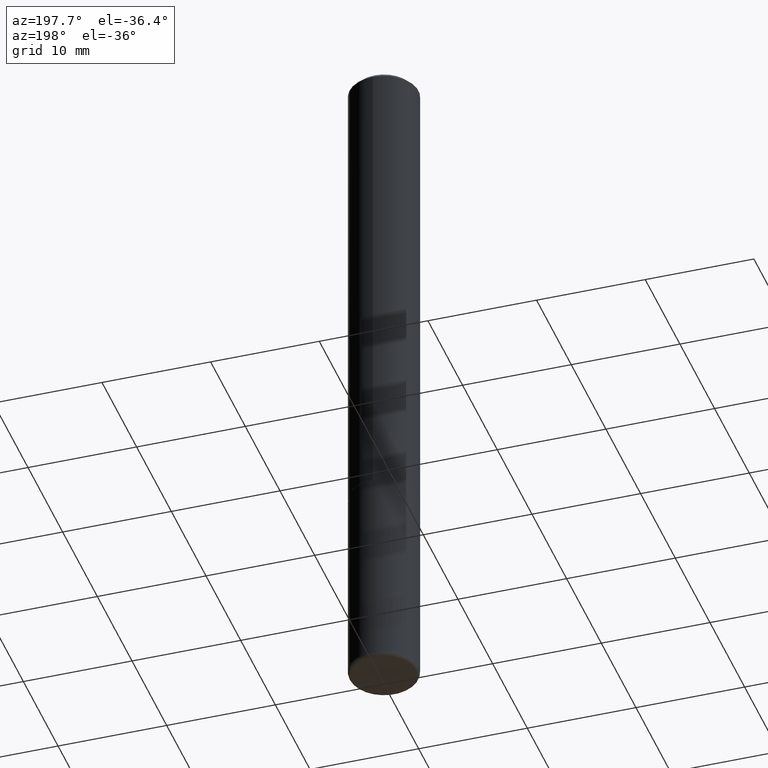
[diagram: clean part render]
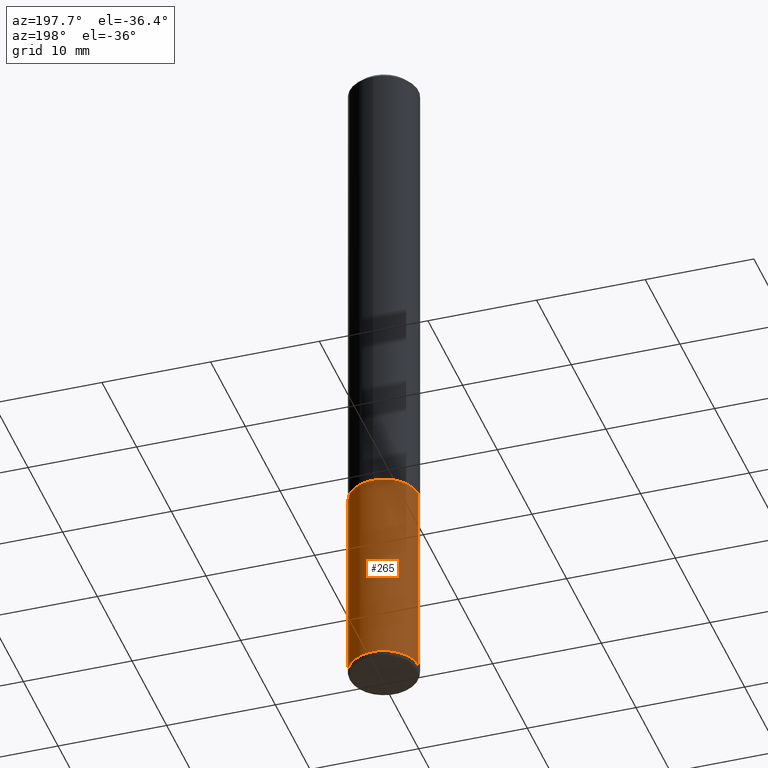
[diagram: same view with one face highlighted and labeled with its STEP entity id]
A machine part, auxiliary view. The second image highlights one B-rep face of the part: STEP entity #265.
In plain terms, the highlighted cylindrical surface (edge-blend (fillet) strip) has radius 3.175 mm, axis along (-0, 0, 1).
Its self-contained STEP definition (entity closure, byte-faithful):
#10 = AXIS2_PLACEMENT_3D ( 'NONE', #28, #411, #384 ) ;
#28 = CARTESIAN_POINT ( 'NONE',  ( 4.279570410823989044E-29, -6.110092342975505460E-15, -1.750000000000000222 ) ) ;
#41 = ORIENTED_EDGE ( 'NONE', *, *, #385, .F. ) ;
#44 = VERTEX_POINT ( 'NONE', #150 ) ;
#46 = CYLINDRICAL_SURFACE ( 'NONE', #66, 0.1250000000000000000 ) ;
#48 = VERTEX_POINT ( 'NONE', #87 ) ;
#53 = VERTEX_POINT ( 'NONE', #376 ) ;
#57 = VECTOR ( 'NONE', #205, 39.37007874015748143 ) ;
#66 = AXIS2_PLACEMENT_3D ( 'NONE', #177, #136, #266 ) ;
#87 = CARTESIAN_POINT ( 'NONE',  ( -0.1250000000000001943, -7.788152707325089870E-15, -2.484999999999999876 ) ) ;
#104 = CARTESIAN_POINT ( 'NONE',  ( 0.1250000000000000000, -8.728703347107833388E-16, 6.095220969744919741E-30 ) ) ;
#109 = ORIENTED_EDGE ( 'NONE', *, *, #302, .F. ) ;
#136 = DIRECTION ( 'NONE',  ( -2.445468806185136597E-29, 3.491481338843145583E-15, 1.000000000000000000 ) ) ;
#139 = VECTOR ( 'NONE', #399, 39.37007874015748143 ) ;
#144 = FACE_OUTER_BOUND ( 'NONE', #276, .T. ) ;
#150 = CARTESIAN_POINT ( 'NONE',  ( -0.1250000000000000000, -6.505033315300235838E-15, -1.750000000000000222 ) ) ;
#156 = AXIS2_PLACEMENT_3D ( 'NONE', #363, #247, #295 ) ;
#177 = CARTESIAN_POINT ( 'NONE',  ( 0.000000000000000000, 0.000000000000000000, 0.000000000000000000 ) ) ;
#179 = EDGE_CURVE ( 'NONE', #48, #44, #401, .T. ) ;
#205 = DIRECTION ( 'NONE',  ( -2.445468806185136877E-29, 3.491481338843145188E-15, 1.000000000000000000 ) ) ;
#207 = ORIENTED_EDGE ( 'NONE', *, *, #179, .T. ) ;
#211 = CARTESIAN_POINT ( 'NONE',  ( 0.1250000000000000000, -6.982962677686288010E-15, -1.750000000000000222 ) ) ;
#212 = VERTEX_POINT ( 'NONE', #211 ) ;
#223 = EDGE_CURVE ( 'NONE', #53, #48, #353, .T. ) ;
#236 = ORIENTED_EDGE ( 'NONE', *, *, #223, .T. ) ;
#247 = DIRECTION ( 'NONE',  ( -2.445468806185136597E-29, 3.491481338843145583E-15, 1.000000000000000000 ) ) ;
#265 = ADVANCED_FACE ( 'NONE', ( #144 ), #46, .T. ) ;
#266 = DIRECTION ( 'NONE',  ( 1.000000000000000000, -6.982962677686266711E-15, 4.876176775795935793E-29 ) ) ;
#268 = CIRCLE ( 'NONE', #10, 0.1250000000000000000 ) ;
#269 = CARTESIAN_POINT ( 'NONE',  ( -0.1250000000000000000, 8.881784197001252323E-16, -6.148668862818632227E-30 ) ) ;
#276 = EDGE_LOOP ( 'NONE', ( #236, #207, #109, #41 ) ) ;
#295 = DIRECTION ( 'NONE',  ( 1.000000000000000000, -6.982962677686271444E-15, 0.000000000000000000 ) ) ;
#302 = EDGE_CURVE ( 'NONE', #212, #44, #268, .T. ) ;
#353 = CIRCLE ( 'NONE', #156, 0.1249999999999999861 ) ;
#363 = CARTESIAN_POINT ( 'NONE',  ( 6.076989983370064174E-29, -8.676331127025216680E-15, -2.484999999999999876 ) ) ;
#376 = CARTESIAN_POINT ( 'NONE',  ( 0.1250000000000001943, -9.549201461736000019E-15, -2.484999999999999876 ) ) ;
#384 = DIRECTION ( 'NONE',  ( 1.000000000000000000, -6.982962677686262766E-15, 0.000000000000000000 ) ) ;
#385 = EDGE_CURVE ( 'NONE', #53, #212, #392, .T. ) ;
#392 = LINE ( 'NONE', #104, #57 ) ;
#399 = DIRECTION ( 'NONE',  ( -2.445468806185136877E-29, 3.491481338843145188E-15, 1.000000000000000000 ) ) ;
#401 = LINE ( 'NONE', #269, #139 ) ;
#411 = DIRECTION ( 'NONE',  ( -2.445468806185136597E-29, 3.491481338843145583E-15, 1.000000000000000000 ) ) ;